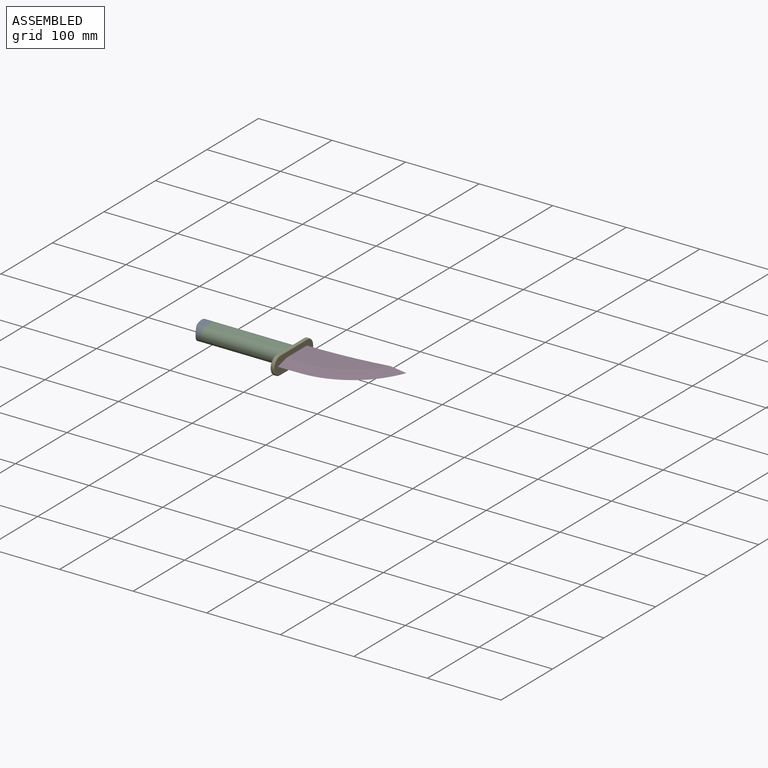
[diagram: assembled view]
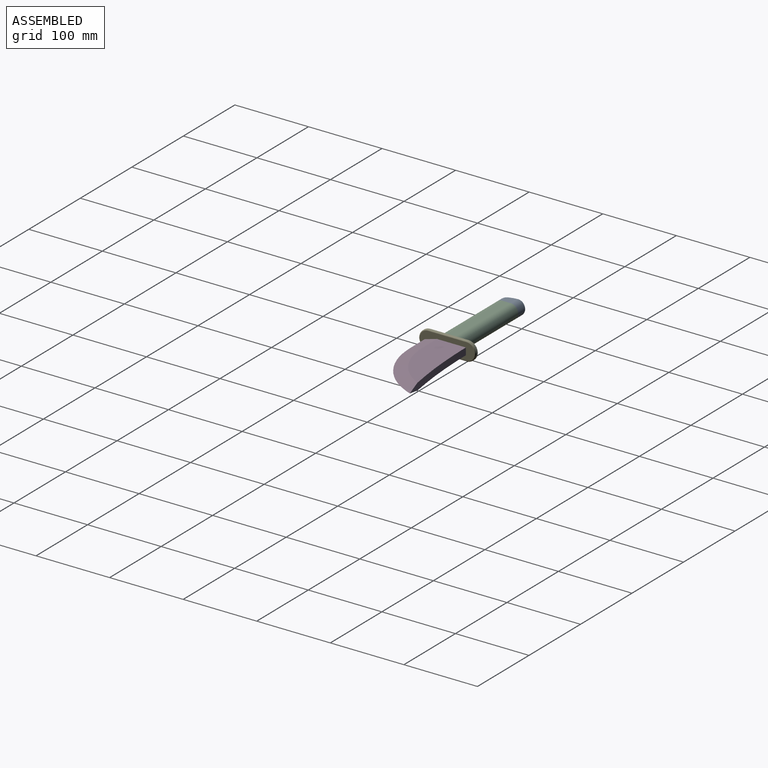
[diagram: assembled view, second angle]
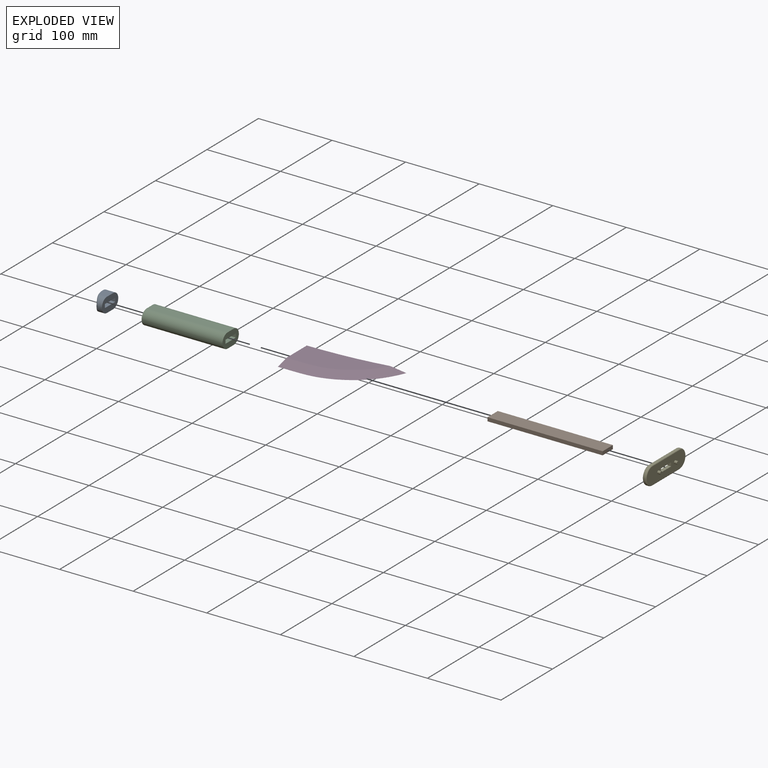
[diagram: exploded view]
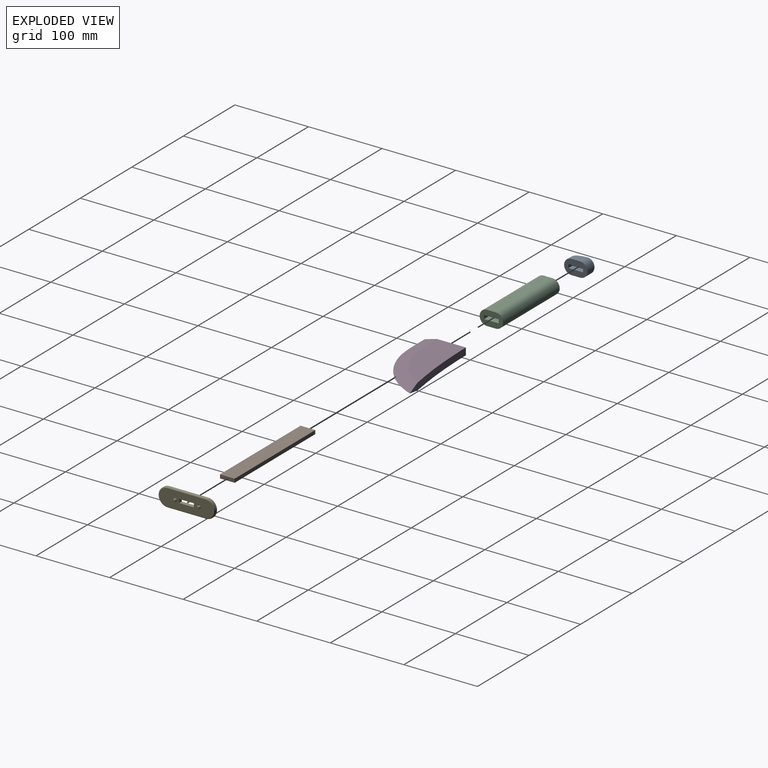
[diagram: exploded view, second angle]
ASSEMBLY  parts=5 mates=4
PART A: 21 faces, bbox 15.4x32.6x20.4 mm
  f0: plane 31.75x20mm, normal (1,0,0), area 449.2mm2, adj f2,f3,f5,f6,f16,f17,f18,f19
  f1: plane 15.07x5.31mm, normal (-1,0,0), area 58.3mm2, adj f7,f8
  f2: plane 12.9x11.75mm, normal (0,0,1), area 139.3mm2, adj f0,f5,f6,f11
  f3: plane 12.9x11.75mm, normal (0,0,-1), area 139.3mm2, adj f0,f5,f6,f12
  f4: plane 15.16x5.45mm, normal (-0.89,0.45,0), area 67.5mm2, adj f7,f15
  f5: cylinder r=10mm len=20mm, axis (1,0,0), area 242.1mm2, adj f0,f2,f3,f13,f14,f15
  f6: cylinder r=10mm len=20mm, axis (-1,0,0), area 408.1mm2, adj f0,f2,f3,f8,f9,f10
  f7: cylinder r=40mm len=17.89mm, axis (0,0,-1), area 295mm2, adj f1,f4,f9,f10,f11,f12,f13,f14
  f8: torus R=8mm, axis (1,0,0), area 71.5mm2, adj f1,f6,f9,f10
  f9: bspline ~4.87x2.82mm, area 10.3mm2, adj f6,f7,f8,f11
  f10: bspline ~4.87x2.82mm, area 10.3mm2, adj f6,f7,f8,f12
  f11: torus R=38mm, axis (0,0,1), area 39.4mm2, adj f2,f7,f9,f13
  f12: torus R=38mm, axis (0,0,1), area 39.4mm2, adj f3,f7,f10,f14
  f13: bspline ~6.09x3.93mm, area 9.9mm2, adj f5,f7,f11,f15
  f14: bspline ~6.09x3.93mm, area 9.9mm2, adj f5,f7,f12,f15
  f15: bspline ~18.96x6.81mm, area 57.8mm2, adj f4,f5,f13,f14
  f16: plane 7.5x5mm, normal (0,-1,0), area 37.5mm2, adj f0,f17,f19,f20
  f17: plane 20x7.5mm, normal (0,0,-1), area 150mm2, adj f0,f16,f18,f20
  f18: plane 7.5x5mm, normal (0,1,0), area 37.5mm2, adj f0,f17,f19,f20
  f19: plane 20x7.5mm, normal (0,0,1), area 150mm2, adj f0,f16,f18,f20
  f20: plane 20x5mm, normal (1,0,0), area 100mm2, adj f16,f17,f18,f19
PART B: 6 faces, bbox 156.5x20x5 mm
  f0: plane 156.5x5mm, normal (0,1,0), area 782.5mm2, adj f1,f3,f4,f5
  f1: plane 20x5mm, normal (-1,0,0), area 100mm2, adj f0,f2,f4,f5
  f2: plane 156.5x5mm, normal (0,-1,0), area 782.5mm2, adj f1,f3,f4,f5
  f3: plane 20x5mm, normal (1,0,0), area 100mm2, adj f0,f2,f4,f5
  f4: plane 156.5x20mm, normal (0,0,1), area 3130mm2, adj f0,f1,f2,f3
  f5: plane 156.5x20mm, normal (0,0,-1), area 3130mm2, adj f0,f1,f2,f3
PART C: 10 faces, bbox 110x31.8x20 mm
  f0: plane 31.75x20mm, normal (1,0,0), area 449.2mm2, adj f2,f3,f4,f5,f6,f7,f8,f9
  f1: plane 31.75x20mm, normal (-1,0,0), area 449.2mm2, adj f2,f3,f4,f5,f6,f7,f8,f9
  f2: plane 110x11.75mm, normal (0,0,1), area 1292.5mm2, adj f0,f1,f8,f9
  f3: plane 110x11.75mm, normal (0,0,-1), area 1292.5mm2, adj f0,f1,f8,f9
  f4: plane 110x20mm, normal (0,0,-1), area 2200mm2, adj f0,f1,f5,f7
  f5: plane 110x5mm, normal (0,1,0), area 550mm2, adj f0,f1,f4,f6
  f6: plane 110x20mm, normal (0,0,1), area 2200mm2, adj f0,f1,f5,f7
  f7: plane 110x5mm, normal (0,-1,0), area 550mm2, adj f0,f1,f4,f6
  f8: cylinder r=10mm len=110mm, axis (1,0,0), area 3455.8mm2, adj f0,f1,f2,f3
  f9: cylinder r=10mm len=110mm, axis (-1,0,0), area 3455.8mm2, adj f0,f1,f2,f3
PART D: 15 faces, bbox 77x129.1x12 mm
  f0: plane 56.06x9.53mm, normal (0,-1,0), area 329.4mm2, adj f1,f2,f3,f4,f5,f6,f7,f8
  f1: extruded ~126.64x12.48mm, area 1122.1mm2, adj f0,f2,f3,f4,f5
  f2: plane 110.84x52.39mm, normal (0,0,1), area 3404.6mm2, adj f0,f1,f5
  f3: plane 110.85x52.39mm, normal (0,0,-1), area 3403.6mm2, adj f0,f1,f4
  f4: bspline ~126.65x74.54mm, area 2433.9mm2, adj f0,f1,f3,f5
  f5: bspline ~126.65x74.54mm, area 2433.9mm2, adj f0,f1,f2,f4
  f6: plane 33.95x20mm, normal (0,0,-1), area 678.9mm2, adj f0,f7,f9,f10
  f7: plane 33.95x5mm, normal (1,0,0), area 169.7mm2, adj f0,f6,f8,f10
  f8: plane 33.95x20mm, normal (0,0,1), area 678.9mm2, adj f0,f7,f9,f10
  f9: plane 33.95x5mm, normal (-1,0,0), area 169.7mm2, adj f0,f6,f8,f10
  f10: plane 20x5mm, normal (0,-1,0), area 100mm2, adj f6,f7,f8,f9
  f11: cylinder r=2mm len=4mm, axis (0,1,0), area 49.6mm2, adj f0,f12
  f12: plane 4x4mm, normal (0,-1,0), area 12.6mm2, adj f11
  f13: cylinder r=2mm len=4mm, axis (0,1,0), area 49.6mm2, adj f0,f14
  f14: plane 4x4mm, normal (0,-1,0), area 12.6mm2, adj f13
PART E: 22 faces, bbox 79.2x27.1x9 mm
  f0: plane 5x5mm, normal (1,0,0), area 25mm2, adj f1,f5,f6,f7
  f1: plane 20x5mm, normal (0,-1,0), area 100mm2, adj f0,f2,f6,f7
  f2: plane 5x5mm, normal (-1,0,0), area 25mm2, adj f1,f5,f6,f7
  f3: plane 52.15x2.5mm, normal (0,1,0), area 130.4mm2, adj f8,f9,f11,f16
  f4: plane 52.15x2.5mm, normal (0,-1,0), area 130.4mm2, adj f8,f9,f12,f15
  f5: plane 20x5mm, normal (0,1,0), area 100mm2, adj f0,f2,f6,f7
  f6: plane 74.65x22.5mm, normal (0,0,1), area 1445.9mm2, adj f0,f1,f2,f5,f10,f11,f12,f13
  f7: plane 74.65x22.5mm, normal (0,0,-1), area 1471mm2, adj f0,f1,f2,f5,f14,f15,f16,f17
  f8: cylinder r=12.5mm len=25mm, axis (0,0,-1), area 98.2mm2, adj f3,f4,f10,f14
  f9: cylinder r=12.5mm len=25mm, axis (0,0,1), area 98.2mm2, adj f3,f4,f13,f17
  f10: torus R=11.25mm, axis (0,0,1), area 74.3mm2, adj f6,f8,f11,f12
  f11: cylinder r=1.25mm len=52.15mm, axis (1,0,0), area 102.4mm2, adj f3,f6,f10,f13
  f12: cylinder r=1.25mm len=52.15mm, axis (-1,0,0), area 102.4mm2, adj f4,f6,f10,f13
  f13: torus R=11.25mm, axis (0,0,1), area 74.3mm2, adj f6,f9,f11,f12
  f14: torus R=11.25mm, axis (0,0,1), area 74.3mm2, adj f7,f8,f15,f16
  f15: cylinder r=1.25mm len=52.15mm, axis (1,0,0), area 102.4mm2, adj f4,f7,f14,f17
  f16: cylinder r=1.25mm len=52.15mm, axis (-1,0,0), area 102.4mm2, adj f3,f7,f14,f17
  f17: torus R=11.25mm, axis (0,0,1), area 74.3mm2, adj f7,f9,f15,f16
  f18: cylinder r=2mm len=4mm, axis (0,0,-1), area 50.3mm2, adj f6,f19
  f19: plane 4x4mm, normal (0,0,1), area 12.6mm2, adj f18
  f20: cylinder r=2mm len=4mm, axis (0,0,-1), area 50.3mm2, adj f6,f21
  f21: plane 4x4mm, normal (0,0,1), area 12.6mm2, adj f20
PLACE A rot(axis=(-1,0,0),180deg) t=(-109.09,-21.84,3.53)mm
PLACE B rot(axis=(0,0,1),180deg) t=(-30.9,-21.84,3.53)mm
PLACE C rot(axis=(0,0,1),180deg) t=(-46.59,-21.84,3.53)mm
PLACE D rot(axis=(0,0,-1),90deg) t=(77.35,-21.84,3.53)mm
PLACE E rot(axis=(-0.58,0.58,-0.58),120deg) t=(8.41,-21.84,3.53)mm
MATE fastened D.f10 <-> B.f1  axis (-1,0,0) through (47.35,-21.84,3.53)mm
MATE fastened E.f7 <-> C.f1  axis (-1,0,0) through (8.41,-21.84,3.53)mm
MATE fastened A.f0 <-> C.f0  axis (1,0,0) through (-101.59,-21.84,3.53)mm
MATE fastened E.f6 <-> D.f0  axis (1,0,0) through (13.41,-21.84,3.53)mm
